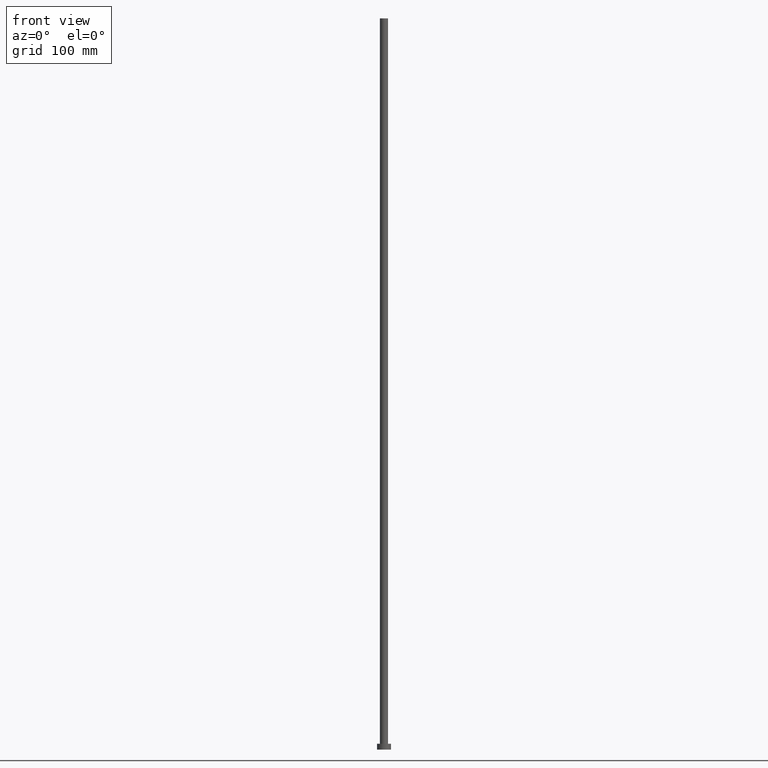
[diagram: clean part render]
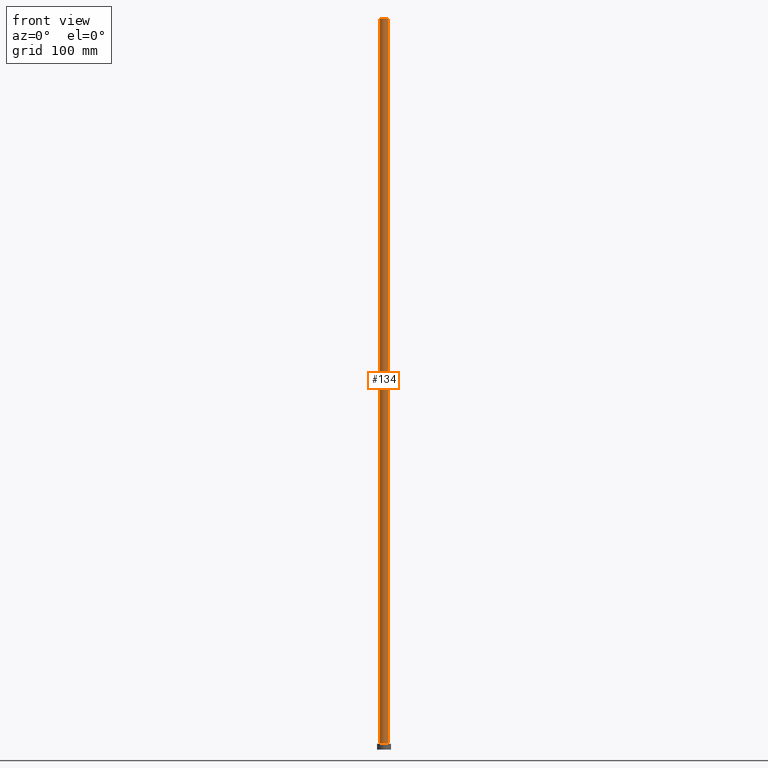
[diagram: same view with one face highlighted and labeled with its STEP entity id]
A machine part, front view. The second image highlights one B-rep face of the part: STEP entity #134.
In plain terms, the highlighted cylindrical surface (edge-blend (fillet) strip) has radius 3.5 mm, axis along (-0, -0, -1).
Its self-contained STEP definition (entity closure, byte-faithful):
#5 = AXIS2_PLACEMENT_3D ( 'NONE', #164, #64, #147 ) ;
#7 = LINE ( 'NONE', #28, #126 ) ;
#24 = CARTESIAN_POINT ( 'NONE',  ( 3.500000000000000000, 4.286263797015736595E-16, 630.0000000000000000 ) ) ;
#25 = CIRCLE ( 'NONE', #215, 3.500000000000000000 ) ;
#28 = CARTESIAN_POINT ( 'NONE',  ( -3.500000000000000000, 0.000000000000000000, 630.0000000000000000 ) ) ;
#29 = CARTESIAN_POINT ( 'NONE',  ( 3.500000000000000000, 4.286263797015736595E-16, 630.0000000000000000 ) ) ;
#34 = EDGE_CURVE ( 'NONE', #76, #150, #25, .T. ) ;
#36 = ORIENTED_EDGE ( 'NONE', *, *, #128, .T. ) ;
#42 = DIRECTION ( 'NONE',  ( 1.000000000000000000, 0.000000000000000000, 0.000000000000000000 ) ) ;
#46 = LINE ( 'NONE', #24, #244 ) ;
#55 = EDGE_CURVE ( 'NONE', #227, #150, #46, .T. ) ;
#63 = DIRECTION ( 'NONE',  ( -0.000000000000000000, -0.000000000000000000, -1.000000000000000000 ) ) ;
#64 = DIRECTION ( 'NONE',  ( 0.000000000000000000, 0.000000000000000000, 1.000000000000000000 ) ) ;
#76 = VERTEX_POINT ( 'NONE', #120 ) ;
#85 = FACE_OUTER_BOUND ( 'NONE', #140, .T. ) ;
#95 = ORIENTED_EDGE ( 'NONE', *, *, #55, .F. ) ;
#117 = CIRCLE ( 'NONE', #5, 3.500000000000000000 ) ;
#120 = CARTESIAN_POINT ( 'NONE',  ( -3.500000000000000000, 0.000000000000000000, 5.000000000000000000 ) ) ;
#126 = VECTOR ( 'NONE', #63, 1000.000000000000000 ) ;
#128 = EDGE_CURVE ( 'NONE', #155, #76, #7, .T. ) ;
#134 = ADVANCED_FACE ( 'NONE', ( #85 ), #166, .T. ) ;
#139 = CARTESIAN_POINT ( 'NONE',  ( 0.000000000000000000, 0.000000000000000000, 5.000000000000000000 ) ) ;
#140 = EDGE_LOOP ( 'NONE', ( #95, #221, #36, #189 ) ) ;
#147 = DIRECTION ( 'NONE',  ( 1.000000000000000000, 0.000000000000000000, 0.000000000000000000 ) ) ;
#150 = VERTEX_POINT ( 'NONE', #158 ) ;
#155 = VERTEX_POINT ( 'NONE', #236 ) ;
#158 = CARTESIAN_POINT ( 'NONE',  ( 3.500000000000000000, 4.286263797015736595E-16, 5.000000000000000000 ) ) ;
#164 = CARTESIAN_POINT ( 'NONE',  ( 0.000000000000000000, 0.000000000000000000, 630.0000000000000000 ) ) ;
#165 = CARTESIAN_POINT ( 'NONE',  ( 0.000000000000000000, 0.000000000000000000, 630.0000000000000000 ) ) ;
#166 = CYLINDRICAL_SURFACE ( 'NONE', #172, 3.500000000000000000 ) ;
#172 = AXIS2_PLACEMENT_3D ( 'NONE', #165, #243, #219 ) ;
#189 = ORIENTED_EDGE ( 'NONE', *, *, #34, .T. ) ;
#198 = DIRECTION ( 'NONE',  ( -0.000000000000000000, -0.000000000000000000, -1.000000000000000000 ) ) ;
#203 = EDGE_CURVE ( 'NONE', #155, #227, #117, .T. ) ;
#213 = DIRECTION ( 'NONE',  ( 0.000000000000000000, 0.000000000000000000, 1.000000000000000000 ) ) ;
#215 = AXIS2_PLACEMENT_3D ( 'NONE', #139, #213, #42 ) ;
#219 = DIRECTION ( 'NONE',  ( -1.000000000000000000, 0.000000000000000000, 0.000000000000000000 ) ) ;
#221 = ORIENTED_EDGE ( 'NONE', *, *, #203, .F. ) ;
#227 = VERTEX_POINT ( 'NONE', #29 ) ;
#236 = CARTESIAN_POINT ( 'NONE',  ( -3.500000000000000000, 0.000000000000000000, 630.0000000000000000 ) ) ;
#243 = DIRECTION ( 'NONE',  ( -0.000000000000000000, -0.000000000000000000, -1.000000000000000000 ) ) ;
#244 = VECTOR ( 'NONE', #198, 1000.000000000000000 ) ;